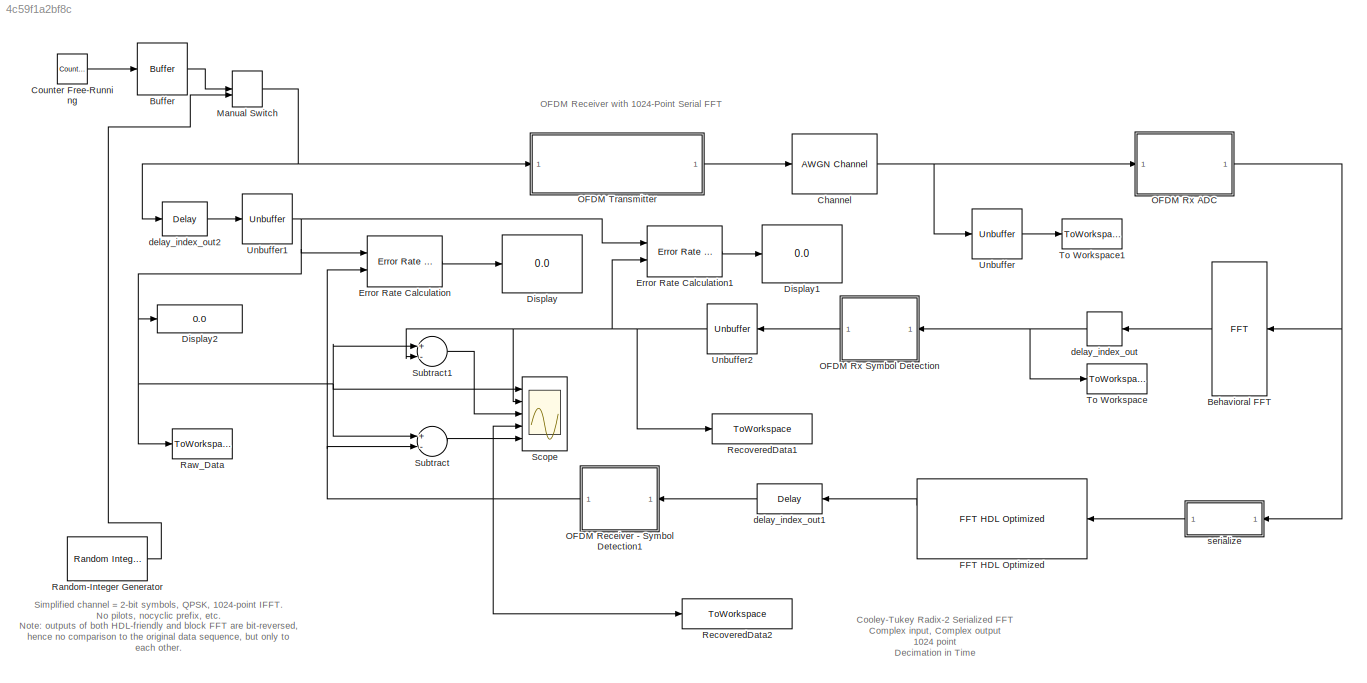
MODEL slx_4c59f1a2bf8c
KIND model
CONFIG InitFcn = wordLength = 16;\nfracLength = 10;\nTotalPoint= 1024;\nTotalStage= 10;\nFFT_nt=numerictype(1,12, 6);\ntwiddle_Signed = 1;\ntwiddle_WordLength = 12;\ntwiddle_FractionLength = 10;\ntwiddle_nt=numerictype(1,12, 10);
BLOCK [Reference] Behavioral FFT  REF=dspxfrm3/FFT
  BitRevOrder = on
  CompMethod = Table lookup
  FFTImplementation = Auto
  FFTLength = 64
  InheritFFTLength = on
  LockScale = off
  Ports = [1, 1]
  RowConvenienceOn = on
  SkipNorm = off
  SourceBlock = dspxfrm3/FFT
  SourceType = FFT
  TableOpt = NEW
  TableOptActive = Speed
  WrapInput = on
  accumDataTypeStr = fixdt(1,25,16)
  accumFracLength = 16
  accumLastDataTypeStr = fixdt(1,25,16)
  accumMode = Binary point scaling
  accumWordLength = 25
  additionalParams = off
  allowOverrides = on
  firstCoeffDataTypeStr = fixdt(1,11)
  firstCoeffFracLength = 10
  firstCoeffLastDataTypeStr = fixdt(1,11)
  firstCoeffMode = Specify word length
  firstCoeffWordLength = 11
  outputDataTypeStr = fixdt(1,12,6)
  outputFracLength = 6
  outputLastDataTypeStr = fixdt(1,12,6)
  outputMax = []
  outputMin = []
  outputMode = Binary point scaling
  outputWordLength = 12
  overflowMode = off
  prodOutputDataTypeStr = fixdt(1,24,16)
  prodOutputFracLength = 16
  prodOutputLastDataTypeStr = fixdt(1,24,16)
  prodOutputMode = Binary point scaling
  prodOutputWordLength = 24
  roundingMode = Floor
BLOCK [Buffer] Buffer
  N = 1024
  TreatMby1Signals = One channel
BLOCK [Reference] Channel  REF=commchan3/AWGN
Channel
  Commented = through
  EbNodB = 10
  EsNodB = EbNodB+10*log10(log2(M))
  InputProcessing = Columns as channels (frame based)
  Ports = [1, 1]
  Ps = 1/1024
  SNRdB = 100
  SourceBlock = commchan3/AWGN\nChannel
  SourceType = AWGN Channel
  Tsym = Tsym
  UserDataPersistent = on
  bitsPerSym = 1
  noiseMode = Signal to noise ratio  (SNR)
  seed = 54321
  variance = 10^(-0.1*15)/(2048*2)
BLOCK [Reference] Counter Free-Running  REF=simulink/Sources/Counter
Free-Running
  NumBits = 2
  Ports = [0, 1]
  SourceBlock = simulink/Sources/Counter\nFree-Running
  SourceType = Counter Free-Running
  tsamp = -1
BLOCK [Display] Display
  Decimation = 1
  Ports = [1]
BLOCK [Display] Display1
  Decimation = 1
  Ports = [1]
BLOCK [Display] Display2
  Decimation = 1
  Ports = [1]
BLOCK [Reference] Error Rate Calculation  REF=commsink2/Error Rate
Calculation
  N = 0
  PMode = Port
  Ports = [2, 1]
  RsMode2 = off
  SourceBlock = commsink2/Error Rate\nCalculation
  SourceType = Error Rate Calculation
  WsName = ErrorVec
  cp_mode = Entire frame
  maxBits = 1e6
  numErr = 100
  st_delay = 1024
  stop = off
  subframe = []
BLOCK [Reference] Error Rate Calculation1  REF=commsink2/Error Rate
Calculation
  N = 0
  PMode = Port
  Ports = [2, 1]
  RsMode2 = off
  SourceBlock = commsink2/Error Rate\nCalculation
  SourceType = Error Rate Calculation
  WsName = ErrorVec
  cp_mode = Entire frame
  maxBits = 1e6
  numErr = 100
  st_delay = 1024
  stop = off
  subframe = []
BLOCK [Reference] FFT HDL Optimized  REF=dspxfrm3/FFT
HDL Optimized
  EndOutputPort = off
  FFTLength = 1024
  FFTLengthSource = Property
  Normalize = off
  OverflowAction = Saturate
  Ports = [1, 2]
  RoundingMethod = Nearest
  SimulateUsing = Code generation
  SourceBlock = dspxfrm3/FFT\nHDL Optimized
  SourceType = dsp.HDLFFT
  StartOutputPort = off
  ValidInputPort = off
BLOCK [ManualSwitch] Manual Switch
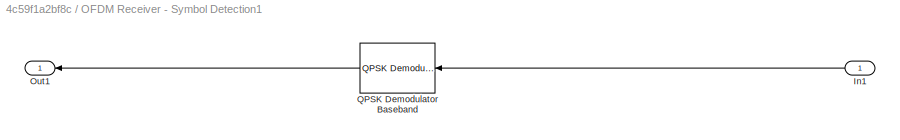
BLOCK [SubSystem] OFDM Receiver - Symbol Detection1
  Ports = [1, 1]
  RequestExecContextInheritance = off
BLOCK [Inport] OFDM Receiver - Symbol Detection1/In1
  IconDisplay = Port number
BLOCK [Outport] OFDM Receiver - Symbol Detection1/Out1
  IconDisplay = Port number
BLOCK [Reference] OFDM Receiver - Symbol Detection1/QPSK Demodulator Baseband  REF=commdigbbndpm3/QPSK
Demodulator
Baseband
  Dec = Gray
  DecType = Hard decision
  OutType = Integer
  Ph = pi/4
  Ports = [1, 1]
  SourceBlock = commdigbbndpm3/QPSK\nDemodulator\nBaseband
  SourceType = QPSK Demodulator Baseband
  VarSource = Dialog
  Variance = 1
  derotateFactorDTMode = Same word length as input
  derotateFactorWordLen = 16
  outDtype1 = Inherit via internal rule
  outDtype2 = Inherit via internal rule
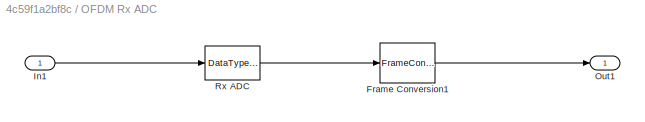
BLOCK [SubSystem] OFDM Rx ADC
  Ports = [1, 1]
  RequestExecContextInheritance = off
BLOCK [FrameConversion] OFDM Rx ADC/Frame Conversion1
  OutFrame = Sample-based
  Ports = [1, 1]
BLOCK [Inport] OFDM Rx ADC/In1
  IconDisplay = Port number
BLOCK [Outport] OFDM Rx ADC/Out1
  IconDisplay = Port number
BLOCK [DataTypeConversion] OFDM Rx ADC/Rx ADC
  OutDataTypeStr = fixdt(1,wordLength,fracLength)
  RndMeth = Floor
  SampleTime = 1024
  SaturateOnIntegerOverflow = off
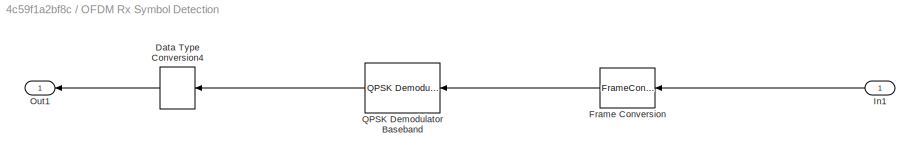
BLOCK [SubSystem] OFDM Rx Symbol Detection
  Ports = [1, 1]
  RequestExecContextInheritance = off
BLOCK [DataTypeConversion] OFDM Rx Symbol Detection/Data Type Conversion4
  OutDataTypeStr = uint8
  RndMeth = Floor
  SaturateOnIntegerOverflow = off
BLOCK [FrameConversion] OFDM Rx Symbol Detection/Frame Conversion
  Ports = [1, 1]
BLOCK [Inport] OFDM Rx Symbol Detection/In1
  IconDisplay = Port number
BLOCK [Outport] OFDM Rx Symbol Detection/Out1
  IconDisplay = Port number
BLOCK [Reference] OFDM Rx Symbol Detection/QPSK Demodulator Baseband  REF=commdigbbndpm3/QPSK
Demodulator
Baseband
  Dec = Gray
  DecType = Hard decision
  OutType = Integer
  Ph = pi/4
  Ports = [1, 1]
  SourceBlock = commdigbbndpm3/QPSK\nDemodulator\nBaseband
  SourceType = QPSK Demodulator Baseband
  VarSource = Dialog
  Variance = 1
  derotateFactorDTMode = Same word length as input
  derotateFactorWordLen = 16
  outDtype1 = Inherit via internal rule
  outDtype2 = Inherit via internal rule
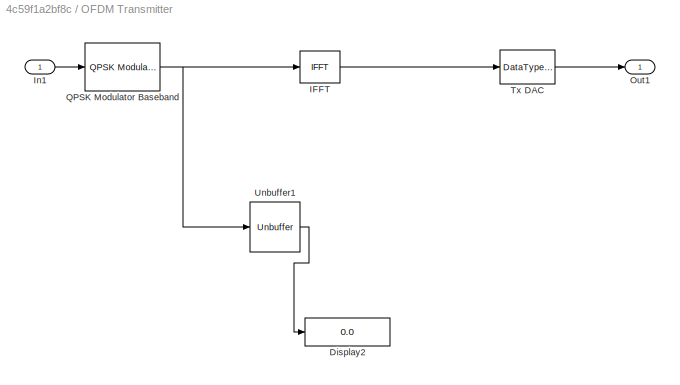
BLOCK [SubSystem] OFDM Transmitter
  Ports = [1, 1]
  RequestExecContextInheritance = off
BLOCK [Display] OFDM Transmitter/Display2
  Decimation = 1
  Ports = [1]
BLOCK [Reference] OFDM Transmitter/IFFT  REF=dspxfrm3/IFFT
  BitRevOrder = on
  CompMethod = Table lookup
  FFTImplementation = Auto
  FFTLength = 64
  InheritFFTLength = on
  LockScale = off
  Ports = [1, 1]
  RowConvenienceOn = on
  SkipNorm = on
  SourceBlock = dspxfrm3/IFFT
  SourceType = IFFT
  TableOpt = HYBRID
  TableOptActive = Speed
  WrapInput = on
  accumDataTypeStr = Inherit: Same as product output
  accumFracLength = 24
  accumLastDataTypeStr = Inherit: Same as product output
  accumMode = Same as product output
  accumWordLength = 32
  additionalParams = off
  allowOverrides = on
  cs_in = off
  firstCoeffDataTypeStr = fixdt(1,16)
  firstCoeffFracLength = 15
  firstCoeffLastDataTypeStr = fixdt(1,16)
  firstCoeffMode = Specify word length
  firstCoeffWordLength = 16
  mode = Complex
  outSamplingMode = Frame based
  outputDataTypeStr = Inherit: Same as input
  outputFracLength = 12
  outputLastDataTypeStr = Inherit: Same as input
  outputMax = []
  outputMin = []
  outputMode = Same as input
  outputWordLength = 16
  overflowMode = off
  prodOutputDataTypeStr = Inherit: Same as input
  prodOutputFracLength = 24
  prodOutputLastDataTypeStr = Inherit: Same as input
  prodOutputMode = Same as input
  prodOutputWordLength = 32
  roundingMode = Floor
BLOCK [Inport] OFDM Transmitter/In1
  IconDisplay = Port number
BLOCK [Outport] OFDM Transmitter/Out1
  IconDisplay = Port number
BLOCK [Reference] OFDM Transmitter/QPSK Modulator Baseband  REF=commdigbbndpm3/QPSK
Modulator
Baseband
  Enc = Gray
  InType = Integer
  Ph = pi/4
  Ports = [1, 1]
  SourceBlock = commdigbbndpm3/QPSK\nModulator\nBaseband
  SourceType = QPSK Modulator Baseband
  outDtype = Fixed-point
  outFracLen = 6
  outFracLenMode = User-defined
  outUDDataType = sfix(16)
  outWordLen = 12
BLOCK [DataTypeConversion] OFDM Transmitter/Tx DAC
  OutDataTypeStr = double
  RndMeth = Floor
  SaturateOnIntegerOverflow = off
BLOCK [Unbuffer] OFDM Transmitter/Unbuffer1
  Ports = [1, 1]
  SampleBasedProcessing = Same as frame based
BLOCK [Reference] Random-Integer Generator  REF=commrandsrc2/Random Integer
Generator
  Ports = [0, 1]
  SourceBlock = commrandsrc2/Random Integer\nGenerator
  SourceType = Random Integer Generator
  Ts = 1
  frameBased = on
  mul = 4
  orient = off
  outDataType = uint8
  sampPerFrame = 1024
  seed = 1234573
BLOCK [ToWorkspace] Raw_Data
  FixptAsFi = on
  MaxDataPoints = inf
  Ports = [1]
  SampleTime = -1
  Save2DSignal = 2-D array (concatenate along first dimension)
  VariableName = RawData
BLOCK [ToWorkspace] RecoveredData1
  FixptAsFi = on
  MaxDataPoints = inf
  Ports = [1]
  SampleTime = -1
  Save2DSignal = 2-D array (concatenate along first dimension)
  VariableName = RecoveredData1
BLOCK [ToWorkspace] RecoveredData2 
  FixptAsFi = on
  MaxDataPoints = inf
  Ports = [1]
  SampleTime = -1
  Save2DSignal = 2-D array (concatenate along first dimension)
  VariableName = RecoveredData2
BLOCK [Scope] Scope
  DataFormat = StructureWithTime
  Floating = off
  MaxDataPoints = 50000
  NumInputPorts = 5
  Ports = [5]
  SampleTime = 0
  ShowLegends = off
  YMax = 5~5~5~5~5
  YMin = -5~-5~-5~-5~-5
  ZoomMode = xonly
BLOCK [Sum] Subtract
  InputSameDT = off
  Inputs = +-
  OutDataTypeStr = Inherit: Inherit via internal rule
  Ports = [2, 1]
  SaturateOnIntegerOverflow = off
BLOCK [Sum] Subtract1
  AccumDataTypeStr = fixdt(1,8,0)
  InputSameDT = off
  Inputs = +-
  OutDataTypeStr = Inherit: Same as accumulator
  Ports = [2, 1]
  SaturateOnIntegerOverflow = off
BLOCK [ToWorkspace] To Workspace
  FixptAsFi = on
  MaxDataPoints = 1
  Ports = [1]
  SampleTime = -1
  VariableName = golden
BLOCK [ToWorkspace] To Workspace1
  FixptAsFi = on
  MaxDataPoints = inf
  Ports = [1]
  SampleTime = -1
  Save2DSignal = 2-D array (concatenate along first dimension)
  VariableName = simout
BLOCK [Unbuffer] Unbuffer
  Ports = [1, 1]
  SampleBasedProcessing = Same as frame based
BLOCK [Unbuffer] Unbuffer1
  Ports = [1, 1]
  SampleBasedProcessing = Same as frame based
BLOCK [Unbuffer] Unbuffer2
  Ports = [1, 1]
  SampleBasedProcessing = Same as frame based
BLOCK [Delay] delay_index_out
  InputPortMap = u0
  InputProcessing = Inherited
  Ports = [1, 1]
  SampleTime = 1024
  UserDataPersistent = on
BLOCK [Delay] delay_index_out1
  DelayLength = 384+64+10
  InputPortMap = u0
  InputProcessing = Inherited
  Ports = [1, 1]
  UserDataPersistent = on
BLOCK [Delay] delay_index_out2
  DelayLength = 2048
  InputPortMap = u0
  InputProcessing = Inherited
  Ports = [1, 1]
  SampleTime = 1024
  UserDataPersistent = on
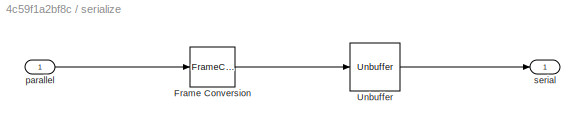
BLOCK [SubSystem] serialize
  Ports = [1, 1]
  RequestExecContextInheritance = off
BLOCK [FrameConversion] serialize/Frame Conversion
  Ports = [1, 1]
BLOCK [Unbuffer] serialize/Unbuffer
  Ports = [1, 1]
  SampleBasedProcessing = Same as frame based
BLOCK [Inport] serialize/parallel
  IconDisplay = Port number
BLOCK [Outport] serialize/serial
  IconDisplay = Port number
ANNOTATION (root): Cooley-Tukey Radix-2 Serialized FFT Complex input, Complex output 1024 point Decimation in Time
ANNOTATION (root): OFDM Receiver with 1024-Point Serial FFT
ANNOTATION (root): Simplified channel = 2-bit symbols, QPSK, 1024-point IFFT. No pilots, nocyclic prefix, etc. Note: outputs of both HDL-friendly and block FFT are bit-reversed, hence no comparison to the original data sequence, but only to each other.
LINE Behavioral FFT:1 -> delay_index_out:1
LINE Buffer:1 -> Manual Switch:1
NET Channel:1 -> OFDM Rx ADC:1, Unbuffer:1
LINE Counter Free-Running:1 -> Buffer:1
LINE Error Rate Calculation1:1 -> Display1:1
LINE Error Rate Calculation:1 -> Display:1
LINE FFT HDL Optimized:1 -> delay_index_out1:1
NET Manual Switch:1 -> OFDM Transmitter:1, delay_index_out2:1
LINE OFDM Receiver - Symbol Detection1/In1:1 -> OFDM Receiver - Symbol Detection1/QPSK Demodulator Baseband:1
LINE OFDM Receiver - Symbol Detection1/QPSK Demodulator Baseband:1 -> OFDM Receiver - Symbol Detection1/Out1:1
NET OFDM Receiver - Symbol Detection1:1 -> Error Rate Calculation:2, RecoveredData2 :1, Scope:4, Subtract:2
LINE OFDM Rx ADC/Frame Conversion1:1 -> OFDM Rx ADC/Out1:1
LINE OFDM Rx ADC/In1:1 -> OFDM Rx ADC/Rx ADC:1
LINE OFDM Rx ADC/Rx ADC:1 -> OFDM Rx ADC/Frame Conversion1:1
NET OFDM Rx ADC:1 -> Behavioral FFT:1, serialize:1
LINE OFDM Rx Symbol Detection/Data Type Conversion4:1 -> OFDM Rx Symbol Detection/Out1:1
LINE OFDM Rx Symbol Detection/Frame Conversion:1 -> OFDM Rx Symbol Detection/QPSK Demodulator Baseband:1
LINE OFDM Rx Symbol Detection/In1:1 -> OFDM Rx Symbol Detection/Frame Conversion:1
LINE OFDM Rx Symbol Detection/QPSK Demodulator Baseband:1 -> OFDM Rx Symbol Detection/Data Type Conversion4:1
LINE OFDM Rx Symbol Detection:1 -> Unbuffer2:1
LINE OFDM Transmitter/IFFT:1 -> OFDM Transmitter/Tx DAC:1
LINE OFDM Transmitter/In1:1 -> OFDM Transmitter/QPSK Modulator Baseband:1
NET OFDM Transmitter/QPSK Modulator Baseband:1 -> OFDM Transmitter/IFFT:1, OFDM Transmitter/Unbuffer1:1
LINE OFDM Transmitter/Tx DAC:1 -> OFDM Transmitter/Out1:1
LINE OFDM Transmitter/Unbuffer1:1 -> OFDM Transmitter/Display2:1
LINE OFDM Transmitter:1 -> Channel:1
LINE Random-Integer Generator:1 -> Manual Switch:2
LINE Subtract1:1 -> Scope:3
LINE Subtract:1 -> Scope:5
NET Unbuffer1:1 -> Display2:1, Error Rate Calculation1:1, Error Rate Calculation:1, Raw_Data:1, Scope:1, Subtract1:1, Subtract:1
NET Unbuffer2:1 -> Error Rate Calculation1:2, RecoveredData1:1, Scope:2, Subtract1:2
LINE Unbuffer:1 -> To Workspace1:1
LINE delay_index_out1:1 -> OFDM Receiver - Symbol Detection1:1
LINE delay_index_out2:1 -> Unbuffer1:1
NET delay_index_out:1 -> OFDM Rx Symbol Detection:1, To Workspace:1
LINE serialize/Frame Conversion:1 -> serialize/Unbuffer:1
LINE serialize/Unbuffer:1 -> serialize/serial:1
LINE serialize/parallel:1 -> serialize/Frame Conversion:1
LINE serialize:1 -> FFT HDL Optimized:1
note: NET lines group one-source signal fan-out (src -> all destinations, sorted); 1:1 wires keep LINE
